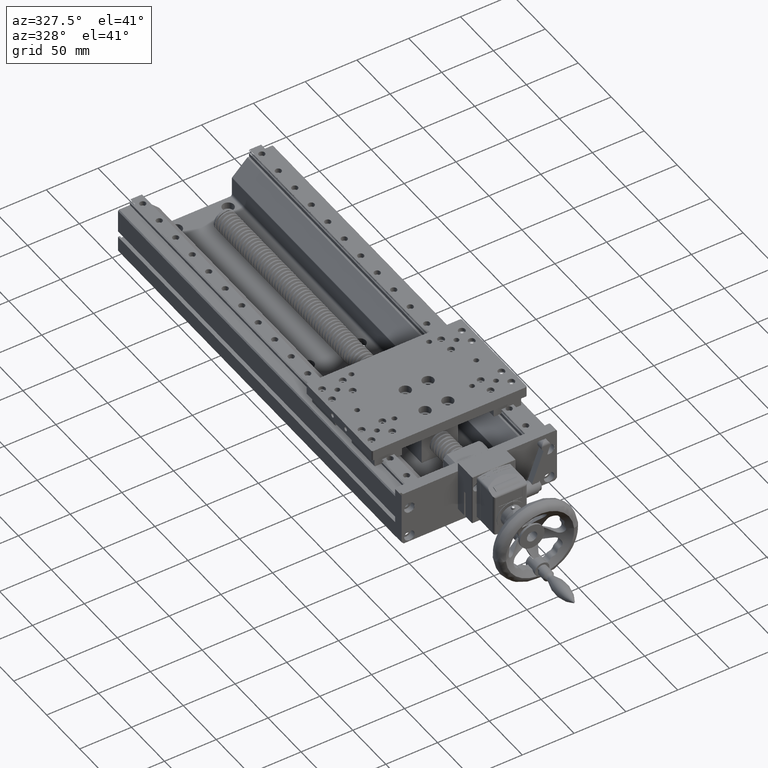
[diagram: clean part render]
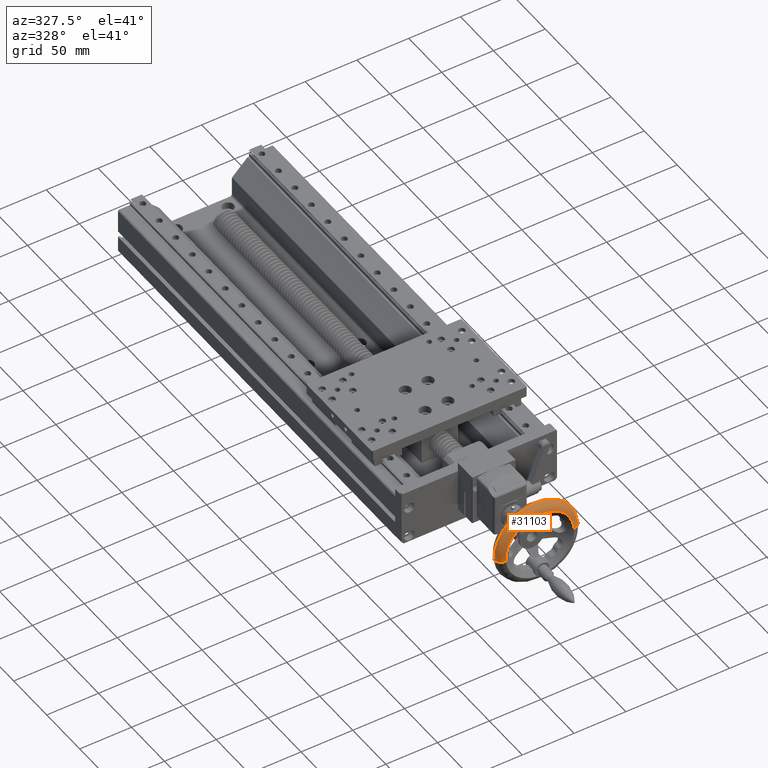
[diagram: same view with one face highlighted and labeled with its STEP entity id]
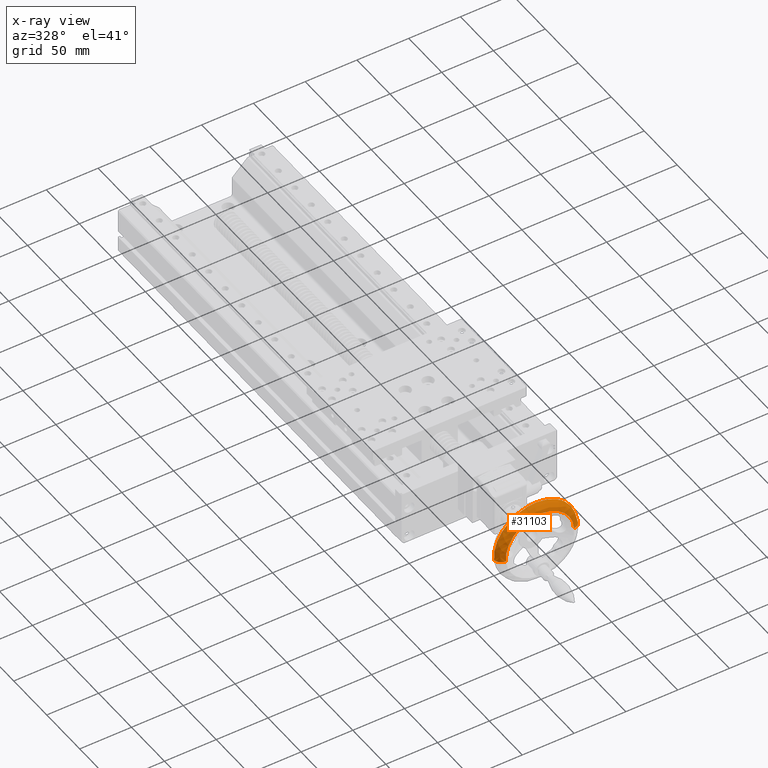
[diagram: x-ray of the same camera — body ghosted, the highlighted face saturated]
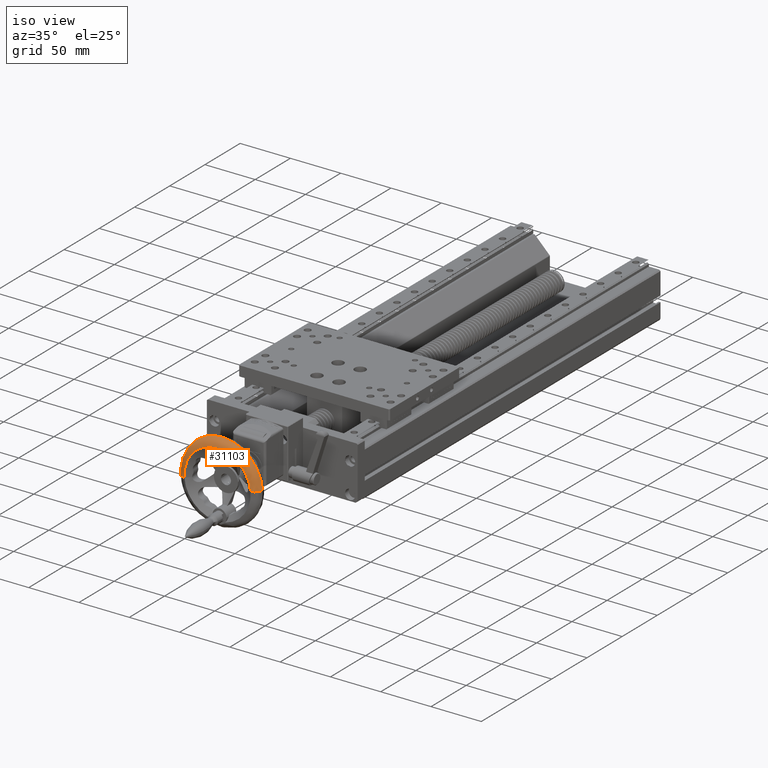
[diagram: same view with one face highlighted and labeled with its STEP entity id]
A machine part, auxiliary view. The second image highlights one B-rep face of the part: STEP entity #31103.
The next image is the same camera in x-ray: the body ghosted, the highlighted face saturated — about 0% of this face is hidden behind the body in this view.
A second angle (iso view) of the same face is appended — the face is thin or edge-on in the first view.
In plain terms, the highlighted face is a freeform B-spline surface patch.
Its self-contained STEP definition (entity closure, byte-faithful):
#813 = AXIS2_PLACEMENT_3D ( 'NONE', #6247, #28965, #32211 ) ;
#1028 = EDGE_LOOP ( 'NONE', ( #38731, #34856, #12438, #4477 ) ) ;
#1149 = CARTESIAN_POINT ( 'NONE',  ( 12.05922801789509435, -228.0472645979108393, 15.52164481621319680 ) ) ;
#2877 = CARTESIAN_POINT ( 'NONE',  ( -64.82097680448987376, -235.0472645979107824, 9.697386279912517892 ) ) ;
#4477 = ORIENTED_EDGE ( 'NONE', *, *, #19310, .T. ) ;
#6079 = CARTESIAN_POINT ( 'NONE',  ( -70.42620424466947782, -235.0472645979107256, 83.68638092896686942 ) ) ;
#6247 = CARTESIAN_POINT ( 'NONE',  ( -27.82647947996266069, -228.0472645979106687, 12.50000000000231459 ) ) ;
#6455 = DIRECTION ( 'NONE',  ( 4.298706452838559615E-15, 1.000000000000000000, -4.467646678869439002E-16 ) ) ;
#6816 = CARTESIAN_POINT ( 'NONE',  ( 3.562790404384887033, -235.0472645979110382, 89.29160836914648769 ) ) ;
#8009 = DIRECTION ( 'NONE',  ( -0.07554112040527195815, 7.702172233337022513E-16, 0.9971426874464437429 ) ) ;
#8443 = VERTEX_POINT ( 'NONE', #10259 ) ;
#10259 = CARTESIAN_POINT ( 'NONE',  ( 5.079229205769499877, -235.0472645979107824, 14.99285697337626466 ) ) ;
#10269 = FACE_OUTER_BOUND ( 'NONE', #1028, .T. ) ;
#10654 = CARTESIAN_POINT ( 'NONE',  ( -27.82647947996269266, -235.0472645979106403, 12.50000000000231815 ) ) ;
#11018 = CARTESIAN_POINT ( 'NONE',  ( 6.015938385473341476, -228.0472645979107824, 95.29305981192871400 ) ) ;
#12438 = ORIENTED_EDGE ( 'NONE', *, *, #47043, .T. ) ;
#14074 = CIRCLE ( 'NONE', #25155, 7.000000000000005329 ) ;
#14466 = CARTESIAN_POINT ( 'NONE',  ( 6.015938385473313055, -232.1477696612993782, 95.29305981192867137 ) ) ;
#14713 = CARTESIAN_POINT ( 'NONE',  ( -67.71218697782040863, -228.0472645979104982, 9.478355183791437710 ) ) ;
#16469 = VERTEX_POINT ( 'NONE', #36171 ) ;
#17071 = DIRECTION ( 'NONE',  ( 0.07554112040527208305, -7.702172233337029416E-16, -0.9971426874464437429 ) ) ;
#17924 = CARTESIAN_POINT ( 'NONE',  ( -60.73218816569486478, -235.0472645979105266, 10.00714302662838051 ) ) ;
#18165 = CARTESIAN_POINT ( 'NONE',  ( 0.09351525902160946757, -235.0472645979107540, 80.80427434484060711 ) ) ;
#19310 = EDGE_CURVE ( 'NONE', #16469, #8443, #24228, .T. ) ;
#19958 = VERTEX_POINT ( 'NONE', #1149 ) ;
#21138 = CARTESIAN_POINT ( 'NONE',  ( -65.71790211244274360, -235.0472645979104698, 75.81856039809271408 ) ) ;
#21635 = CARTESIAN_POINT ( 'NONE',  ( 12.05922801789507304, -232.1477696612994066, 15.52164481621319680 ) ) ;
#22172 = VERTEX_POINT ( 'NONE', #35321 ) ;
#22498 = DIRECTION ( 'NONE',  ( -0.9971426874464438539, 4.205390244792258451E-15, -0.07554112040527199978 ) ) ;
#24228 = CIRCLE ( 'NONE', #42407, 33.00000000000000711 ) ;
#25108 = CARTESIAN_POINT ( 'NONE',  ( -67.71218697782043705, -232.1477696612990655, 9.478355183791439487 ) ) ;
#25155 = AXIS2_PLACEMENT_3D ( 'NONE', #37183, #8009, #37680 ) ;
#25593 = CARTESIAN_POINT ( 'NONE',  ( -73.75547661024218371, -232.1477696612990371, 89.24977017950691049 ) ) ;
#26042 = CIRCLE ( 'NONE', #813, 40.00000000000000000 ) ;
#26927 = AXIS2_PLACEMENT_3D ( 'NONE', #35866, #17071, #28917 ) ;
#28917 = DIRECTION ( 'NONE',  ( 0.9971426874464437429, -3.965082230804125092E-15, 0.07554112040527212468 ) ) ;
#28965 = DIRECTION ( 'NONE',  ( 4.298706452838559615E-15, 1.000000000000000000, -4.467646678869439002E-16 ) ) ;
#29276 = CIRCLE ( 'NONE', #26927, 7.000000000000008882 ) ;
#30313 = EDGE_CURVE ( 'NONE', #19958, #8443, #29276, .T. ) ;
#31103 = ADVANCED_FACE ( 'NONE', ( #10269 ), #48366, .T. ) ;
#32211 = DIRECTION ( 'NONE',  ( -0.9971426874464437429, 4.163336342344337027E-15, -0.07554112040527191652 ) ) ;
#34856 = ORIENTED_EDGE ( 'NONE', *, *, #48348, .F. ) ;
#35321 = CARTESIAN_POINT ( 'NONE',  ( -67.71218697782040863, -228.0472645979104982, 9.478355183791437710 ) ) ;
#35866 = CARTESIAN_POINT ( 'NONE',  ( 5.079229205769982158, -228.0472645979108393, 14.99285697337629131 ) ) ;
#36171 = CARTESIAN_POINT ( 'NONE',  ( -60.73218816569486478, -235.0472645979104982, 10.00714302662838051 ) ) ;
#36974 = CARTESIAN_POINT ( 'NONE',  ( 5.079229205769489219, -235.0472645979108393, 14.99285697337625933 ) ) ;
#37183 = CARTESIAN_POINT ( 'NONE',  ( -60.73218816569530532, -228.0472645979105266, 10.00714302662834143 ) ) ;
#37680 = DIRECTION ( 'NONE',  ( -0.9971426874464437429, 3.965082230804127459E-15, -0.07554112040527190264 ) ) ;
#38731 = ORIENTED_EDGE ( 'NONE', *, *, #30313, .F. ) ;
#40425 = CARTESIAN_POINT ( 'NONE',  ( 12.05922801789509968, -228.0472645979108677, 15.52164481621319503 ) ) ;
#40675 = CARTESIAN_POINT ( 'NONE',  ( -73.75547661024216950, -228.0472645979104698, 89.24977017950692471 ) ) ;
#42407 = AXIS2_PLACEMENT_3D ( 'NONE', #10654, #6455, #22498 ) ;
#44380 = CARTESIAN_POINT ( 'NONE',  ( 9.168017844564495533, -235.0472645979110951, 15.30261372009212195 ) ) ;
#47043 = EDGE_CURVE ( 'NONE', #22172, #16469, #14074, .T. ) ;
#48348 = EDGE_CURVE ( 'NONE', #22172, #19958, #26042, .T. ) ;
#48366 =( BOUNDED_SURFACE ( )  B_SPLINE_SURFACE ( 3, 3, ( 
 ( #14713, #40675, #11018, #40425 ),
 ( #25108, #25593, #14466, #21635 ),
 ( #2877, #6079, #6816, #44380 ),
 ( #17924, #21138, #18165, #36974 ) ),
 .UNSPECIFIED., .F., .F., .F. ) 
 B_SPLINE_SURFACE_WITH_KNOTS ( ( 4, 4 ),
 ( 4, 4 ),
 ( 0.000000000000000000, 1.000000000000000000 ),
 ( 0.000000000000000000, 1.000000000000000000 ),
 .UNSPECIFIED. ) 
 GEOMETRIC_REPRESENTATION_ITEM ( )  RATIONAL_B_SPLINE_SURFACE ( (
 ( 1.000000000000000000, 0.3333333333333334259, 0.3333333333333334259, 1.000000000000000000),
 ( 0.8047378541243492833, 0.2682459513747831870, 0.2682459513747831870, 0.8047378541243492833),
 ( 0.8047378541243492833, 0.2682459513747831870, 0.2682459513747831870, 0.8047378541243492833),
 ( 1.000000000000000000, 0.3333333333333334259, 0.3333333333333334259, 1.000000000000000000) ) ) 
 REPRESENTATION_ITEM ( '' )  SURFACE ( )  );